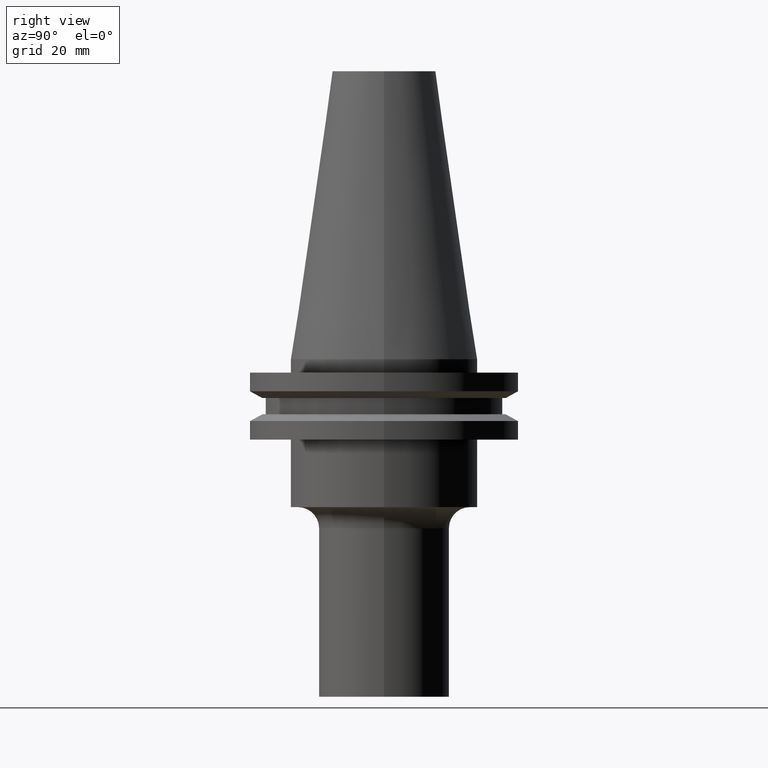
[diagram: clean part render]
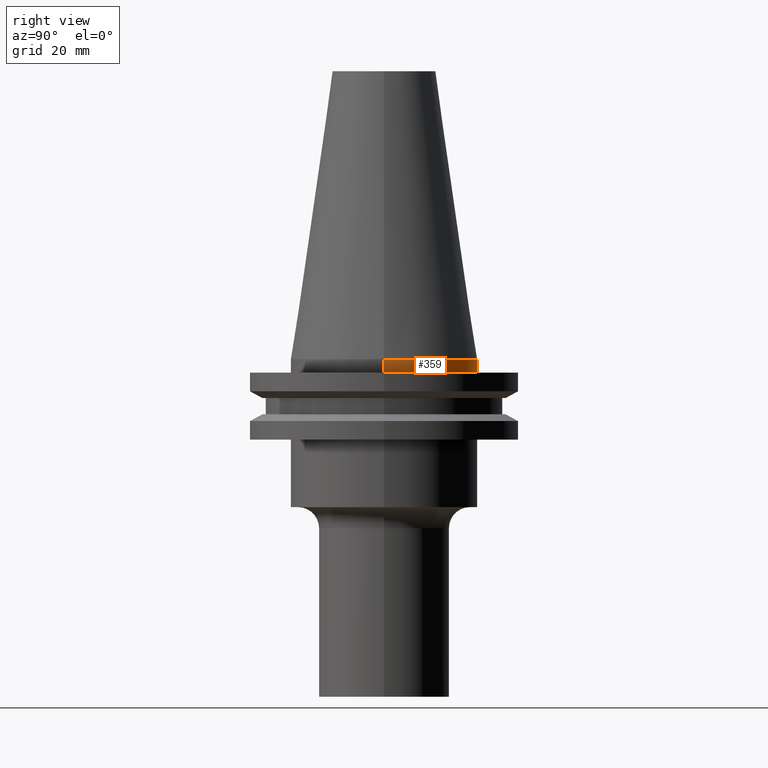
[diagram: same view with one face highlighted and labeled with its STEP entity id]
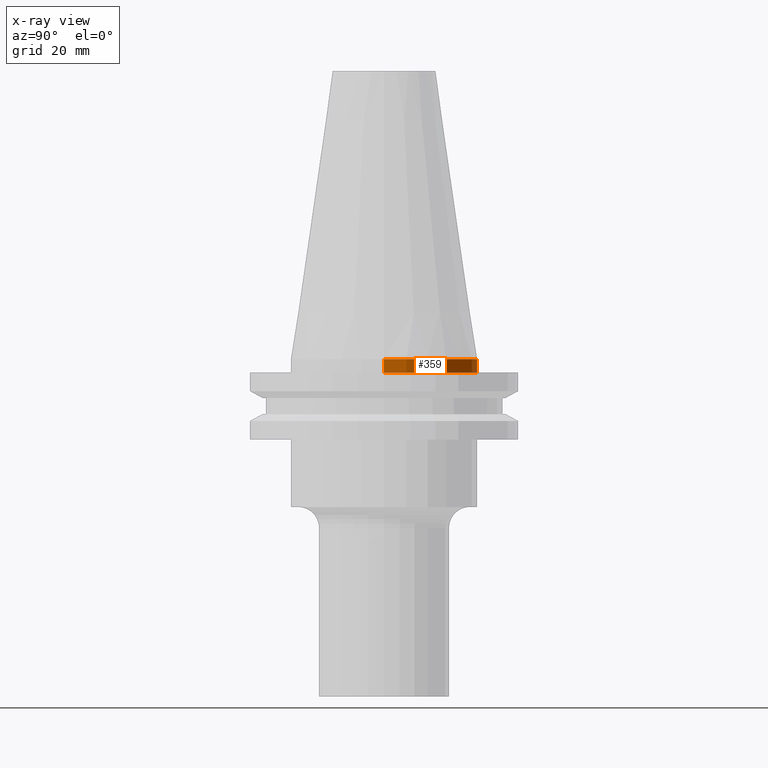
[diagram: x-ray of the same camera — body ghosted, the highlighted face saturated]
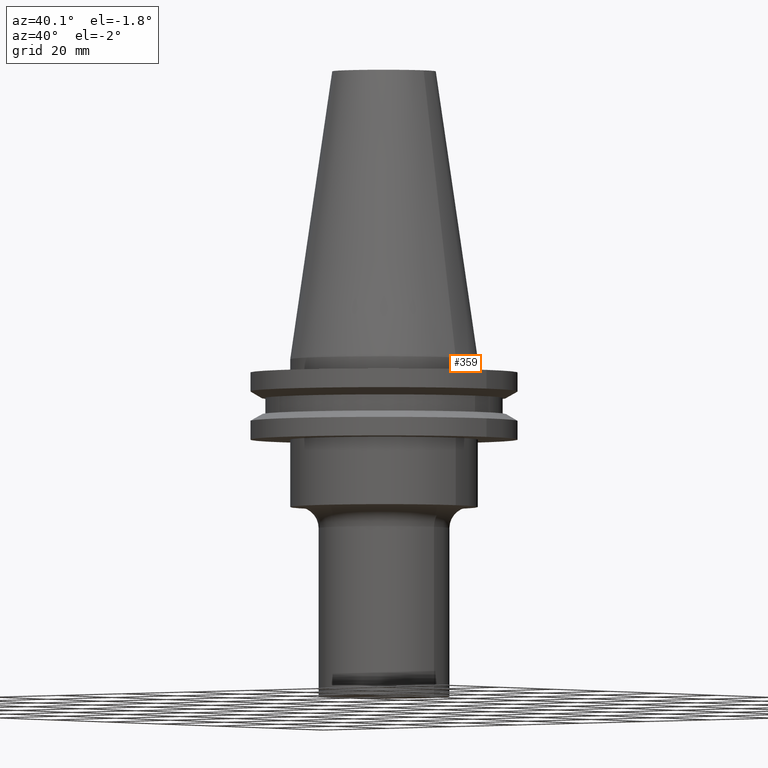
[diagram: same view with one face highlighted and labeled with its STEP entity id]
A machine part, right view. The second image highlights one B-rep face of the part: STEP entity #359.
The next image is the same camera in x-ray: the body ghosted, the highlighted face saturated — about 0% of this face is hidden behind the body in this view.
A second angle (auxiliary view) of the same face is appended — the face is thin or edge-on in the first view.
In plain terms, the highlighted cylindrical surface (partial cylindrical patch) has radius 22.225 mm, axis along (-0, -0, 1).
Its self-contained STEP definition (entity closure, byte-faithful):
#21 = VECTOR ( 'NONE', #135, 1000.000000000000000 ) ;
#35 = ORIENTED_EDGE ( 'NONE', *, *, #292, .F. ) ;
#67 = CARTESIAN_POINT ( 'NONE',  ( 22.22500000000000142, 0.000000000000000000, 68.25000000000000000 ) ) ;
#80 = CARTESIAN_POINT ( 'NONE',  ( 22.22500000000000142, 2.721777511104992849E-15, 0.000000000000000000 ) ) ;
#109 = EDGE_CURVE ( 'NONE', #478, #525, #196, .T. ) ;
#117 = AXIS2_PLACEMENT_3D ( 'NONE', #699, #703, #411 ) ;
#124 = CARTESIAN_POINT ( 'NONE',  ( -22.22500000000000142, 2.721777511104992849E-15, -3.174999999999997158 ) ) ;
#127 = CARTESIAN_POINT ( 'NONE',  ( 22.22500000000000142, 0.000000000000000000, -3.174999999999997158 ) ) ;
#135 = DIRECTION ( 'NONE',  ( -0.000000000000000000, -0.000000000000000000, 1.000000000000000000 ) ) ;
#141 = AXIS2_PLACEMENT_3D ( 'NONE', #645, #579, #575 ) ;
#196 = LINE ( 'NONE', #688, #21 ) ;
#213 = VERTEX_POINT ( 'NONE', #127 ) ;
#241 = EDGE_CURVE ( 'NONE', #213, #478, #340, .T. ) ;
#259 = CARTESIAN_POINT ( 'NONE',  ( 0.000000000000000000, 0.000000000000000000, -3.174999999999997158 ) ) ;
#291 = FACE_OUTER_BOUND ( 'NONE', #586, .T. ) ;
#292 = EDGE_CURVE ( 'NONE', #638, #525, #680, .T. ) ;
#318 = DIRECTION ( 'NONE',  ( -0.000000000000000000, -0.000000000000000000, 1.000000000000000000 ) ) ;
#340 = CIRCLE ( 'NONE', #368, 22.22500000000000142 ) ;
#351 = VECTOR ( 'NONE', #318, 1000.000000000000000 ) ;
#359 = ADVANCED_FACE ( 'NONE', ( #291 ), #469, .T. ) ;
#368 = AXIS2_PLACEMENT_3D ( 'NONE', #259, #498, #392 ) ;
#392 = DIRECTION ( 'NONE',  ( 1.000000000000000000, 0.000000000000000000, 0.000000000000000000 ) ) ;
#411 = DIRECTION ( 'NONE',  ( 1.000000000000000000, 0.000000000000000000, 0.000000000000000000 ) ) ;
#469 = CYLINDRICAL_SURFACE ( 'NONE', #117, 22.22500000000000142 ) ;
#478 = VERTEX_POINT ( 'NONE', #124 ) ;
#498 = DIRECTION ( 'NONE',  ( -0.000000000000000000, -0.000000000000000000, 1.000000000000000000 ) ) ;
#502 = EDGE_CURVE ( 'NONE', #213, #638, #559, .T. ) ;
#525 = VERTEX_POINT ( 'NONE', #659 ) ;
#559 = LINE ( 'NONE', #67, #351 ) ;
#575 = DIRECTION ( 'NONE',  ( 1.000000000000000000, 0.000000000000000000, 0.000000000000000000 ) ) ;
#579 = DIRECTION ( 'NONE',  ( -0.000000000000000000, -0.000000000000000000, 1.000000000000000000 ) ) ;
#580 = ORIENTED_EDGE ( 'NONE', *, *, #502, .F. ) ;
#586 = EDGE_LOOP ( 'NONE', ( #751, #771, #35, #580 ) ) ;
#638 = VERTEX_POINT ( 'NONE', #80 ) ;
#645 = CARTESIAN_POINT ( 'NONE',  ( 0.000000000000000000, 0.000000000000000000, 0.000000000000000000 ) ) ;
#659 = CARTESIAN_POINT ( 'NONE',  ( -22.22500000000000142, 0.000000000000000000, 0.000000000000000000 ) ) ;
#680 = CIRCLE ( 'NONE', #141, 22.22500000000000142 ) ;
#688 = CARTESIAN_POINT ( 'NONE',  ( -22.22500000000000142, 2.721777511104992849E-15, 68.25000000000000000 ) ) ;
#699 = CARTESIAN_POINT ( 'NONE',  ( 0.000000000000000000, 0.000000000000000000, 68.25000000000000000 ) ) ;
#703 = DIRECTION ( 'NONE',  ( -0.000000000000000000, -0.000000000000000000, 1.000000000000000000 ) ) ;
#751 = ORIENTED_EDGE ( 'NONE', *, *, #241, .T. ) ;
#771 = ORIENTED_EDGE ( 'NONE', *, *, #109, .T. ) ;